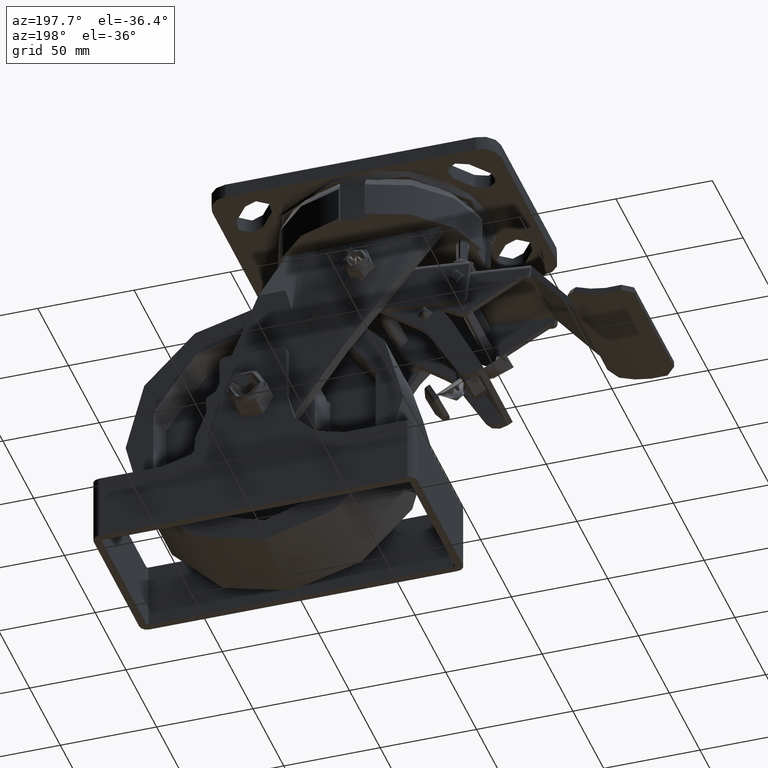
[diagram: clean part render]
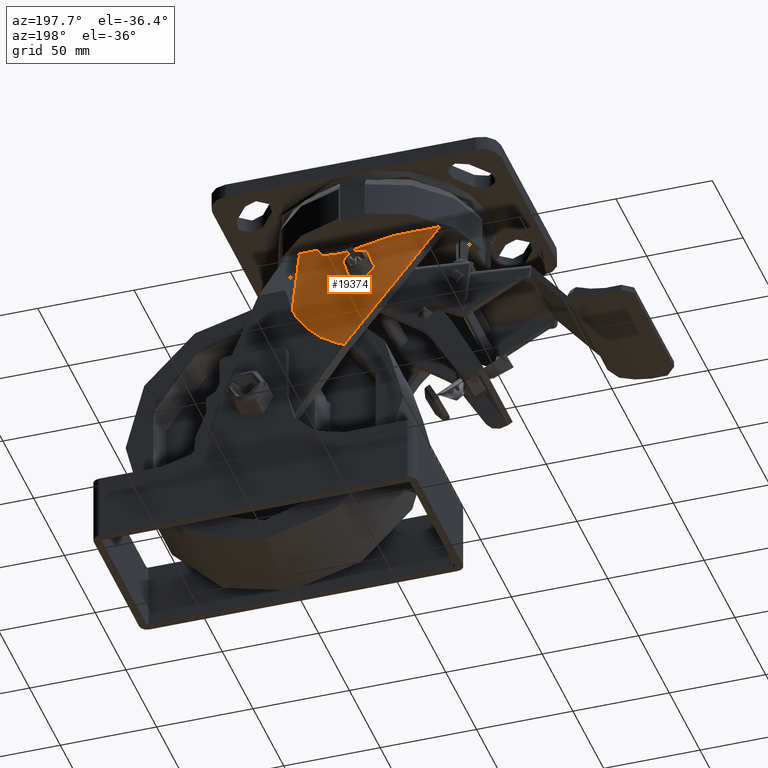
[diagram: same view with one face highlighted and labeled with its STEP entity id]
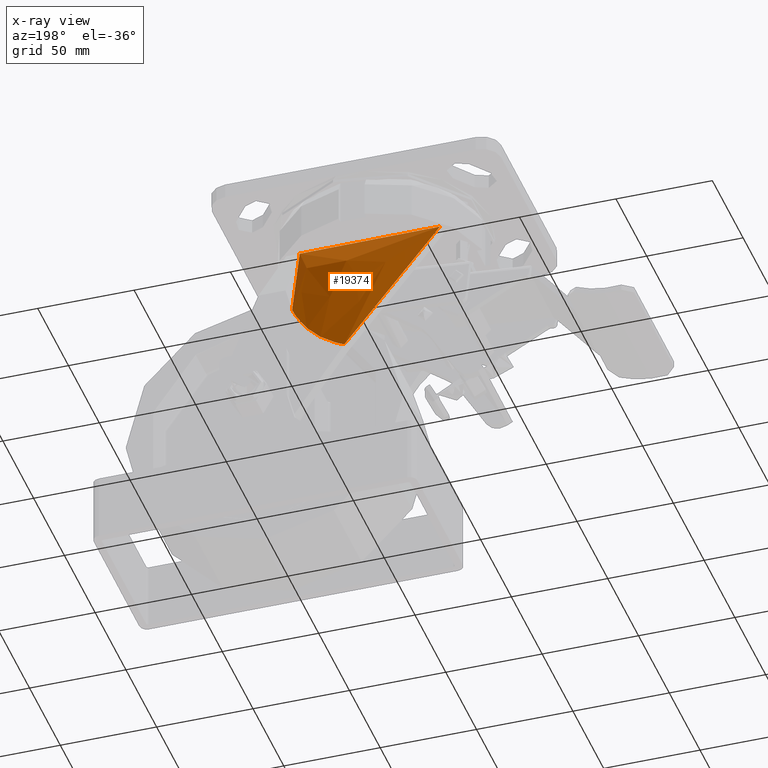
[diagram: x-ray of the same camera — body ghosted, the highlighted face saturated]
A machine part, auxiliary view. The second image highlights one B-rep face of the part: STEP entity #19374.
The next image is the same camera in x-ray: the body ghosted, the highlighted face saturated — about 0% of this face is hidden behind the body in this view.
In plain terms, the highlighted face is a freeform B-spline surface patch.
Its self-contained STEP definition (entity closure, byte-faithful):
#250=B_SPLINE_SURFACE_WITH_KNOTS('',3,3,((#71888,#71889,#71890,#71891,#71892,
#71893,#71894,#71895,#71896,#71897,#71898,#71899,#71900,#71901,#71902,#71903,
#71904,#71905,#71906,#71907,#71908,#71909),(#71910,#71911,#71912,#71913,
#71914,#71915,#71916,#71917,#71918,#71919,#71920,#71921,#71922,#71923,#71924,
#71925,#71926,#71927,#71928,#71929,#71930,#71931),(#71932,#71933,#71934,
#71935,#71936,#71937,#71938,#71939,#71940,#71941,#71942,#71943,#71944,#71945,
#71946,#71947,#71948,#71949,#71950,#71951,#71952,#71953),(#71954,#71955,
#71956,#71957,#71958,#71959,#71960,#71961,#71962,#71963,#71964,#71965,#71966,
#71967,#71968,#71969,#71970,#71971,#71972,#71973,#71974,#71975)),
 .UNSPECIFIED.,.F.,.F.,.F.,(4,4),(4,3,3,3,3,3,3,4),(0.,1.00000144330528),
(0.,0.129636568991837,0.2424674979637,0.340671412427488,0.509554797545953,
0.635179634033785,0.819817845282268,1.),.UNSPECIFIED.);
#824=B_SPLINE_CURVE_WITH_KNOTS('',3,(#71375,#71376,#71377,#71378),
 .UNSPECIFIED.,.F.,.F.,(4,4),(-1.30902538549853,-1.28621856521094),
 .UNSPECIFIED.);
#825=B_SPLINE_CURVE_WITH_KNOTS('',3,(#71380,#71381,#71382,#71383,#71384,
#71385,#71386,#71387,#71388,#71389,#71390,#71391,#71392,#71393,#71394,#71395,
#71396,#71397,#71398,#71399,#71400,#71401),.UNSPECIFIED.,.F.,.F.,(4,2,2,
2,2,2,2,2,2,2,4),(-1.25816083343912,-1.16818722275474,-1.08702808225504,
-0.972460856534677,-0.874482825054584,-0.768076427887392,-0.631192584790718,
-0.480579641983627,-0.321516949378837,-0.154243951292949,-1.00000341357915E-6),
 .UNSPECIFIED.);
#826=B_SPLINE_CURVE_WITH_KNOTS('',3,(#71402,#71403,#71404,#71405,#71406,
#71407,#71408,#71409,#71410,#71411,#71412,#71413,#71414,#71415,#71416,#71417,
#71418,#71419,#71420,#71421,#71422,#71423),.UNSPECIFIED.,.F.,.F.,(4,2,2,
2,2,2,2,2,2,2,4),(-1.28621856521094,-1.15467473941666,-1.01795669861519,
-0.903749095798788,-0.794809578487895,-0.670706475052889,-0.509225732616753,
-0.354964521386418,-0.181182880593424,-0.0929115591689827,-9.99999999695689E-7),
 .UNSPECIFIED.);
#827=B_SPLINE_CURVE_WITH_KNOTS('',3,(#71438,#71439,#71440,#71441,#71442,
#71443,#71444,#71445),.UNSPECIFIED.,.F.,.F.,(4,2,2,4),(-0.465779426838539,
-0.231529699049475,0.,0.00271974119233142),.UNSPECIFIED.);
#828=B_SPLINE_CURVE_WITH_KNOTS('',3,(#71449,#71450,#71451,#71452,#71453,
#71454,#71455,#71456),.UNSPECIFIED.,.F.,.F.,(4,2,2,4),(-0.506349159796468,
-0.50358787928808,-0.253174582982745,0.),.UNSPECIFIED.);
#836=B_SPLINE_CURVE_WITH_KNOTS('',3,(#71976,#71977,#71978,#71979,#71980,
#71981,#71982,#71983,#71984,#71985,#71986,#71987,#71988,#71989,#71990,#71991,
#71992,#71993,#71994,#71995,#71996,#71997),.UNSPECIFIED.,.F.,.F.,(4,3,3,
3,3,3,3,4),(0.,0.129636568991837,0.2424674979637,0.340671412427488,0.509554797545953,
0.635179634033785,0.819817845282268,1.),.UNSPECIFIED.);
#1323=FACE_BOUND('',#7205,.T.);
#2653=LINE('',#71501,#3921);
#2658=LINE('',#71887,#3926);
#3921=VECTOR('',#25054,999.999999999999);
#3926=VECTOR('',#25059,999.999999999999);
#5911=FACE_OUTER_BOUND('',#7204,.T.);
#7204=EDGE_LOOP('',(#16744,#16745,#16746,#16747,#16748,#16749));
#7205=EDGE_LOOP('',(#16750,#16751,#16752));
#8105=CIRCLE('',#21279,50.1174203491552);
#9492=VERTEX_POINT('',#71372);
#9493=VERTEX_POINT('',#71374);
#9494=VERTEX_POINT('',#71379);
#9499=VERTEX_POINT('',#71435);
#9500=VERTEX_POINT('',#71437);
#9501=VERTEX_POINT('',#71446);
#9502=VERTEX_POINT('',#71448);
#9509=VERTEX_POINT('',#71500);
#9513=VERTEX_POINT('',#71780);
#11989=EDGE_CURVE('',#9493,#9492,#824,.T.);
#11990=EDGE_CURVE('',#9494,#9493,#825,.T.);
#11991=EDGE_CURVE('',#9492,#9494,#826,.T.);
#11998=EDGE_CURVE('',#9499,#9500,#827,.T.);
#11999=EDGE_CURVE('',#9500,#9501,#8105,.T.);
#12000=EDGE_CURVE('',#9501,#9502,#828,.T.);
#12010=EDGE_CURVE('',#9509,#9499,#2653,.T.);
#12019=EDGE_CURVE('',#9513,#9502,#2658,.T.);
#12020=EDGE_CURVE('',#9513,#9509,#836,.T.);
#16744=ORIENTED_EDGE('',*,*,#12020,.F.);
#16745=ORIENTED_EDGE('',*,*,#12019,.T.);
#16746=ORIENTED_EDGE('',*,*,#12000,.F.);
#16747=ORIENTED_EDGE('',*,*,#11999,.F.);
#16748=ORIENTED_EDGE('',*,*,#11998,.F.);
#16749=ORIENTED_EDGE('',*,*,#12010,.F.);
#16750=ORIENTED_EDGE('',*,*,#11989,.T.);
#16751=ORIENTED_EDGE('',*,*,#11991,.T.);
#16752=ORIENTED_EDGE('',*,*,#11990,.T.);
#19374=ADVANCED_FACE('',(#5911,#1323),#250,.T.);
#21279=AXIS2_PLACEMENT_3D('',#71447,#25039,#25040);
#25039=DIRECTION('center_axis',(0.,-1.,0.));
#25040=DIRECTION('ref_axis',(0.923619010145107,0.,0.383311784450429));
#25054=DIRECTION('',(0.589113553421911,0.0676135997803201,-0.805216506474722));
#25059=DIRECTION('',(0.0518250218828474,0.154238043425194,-0.986673600066005));
#71372=CARTESIAN_POINT('',(2.17288799134469,40.7590428257837,-58.6625908997687));
#71374=CARTESIAN_POINT('',(2.16662042458714,40.7175984357472,-58.886424114284));
#71375=CARTESIAN_POINT('Ctrl Pts',(2.16662041759125,40.7175984334009,-58.8864241134496));
#71376=CARTESIAN_POINT('Ctrl Pts',(2.17080042853083,40.7316551232003,-58.8118424865458));
#71377=CARTESIAN_POINT('Ctrl Pts',(2.17288799134469,40.745470931471,-58.7372082310027));
#71378=CARTESIAN_POINT('Ctrl Pts',(2.17288799134469,40.7590428257837,-58.6625908997687));
#71379=CARTESIAN_POINT('',(-5.827112008147,39.3179797637501,-58.6625271318123));
#71380=CARTESIAN_POINT('Ctrl Pts',(-5.827112008147,39.3179797637501,-58.6625271318123));
#71381=CARTESIAN_POINT('Ctrl Pts',(-5.82711666409781,39.2502611425835,-58.9545829588625));
#71382=CARTESIAN_POINT('Ctrl Pts',(-5.79514239374063,39.1904512502908,-59.2474678657111));
#71383=CARTESIAN_POINT('Ctrl Pts',(-5.67241566334739,39.0950543794888,-59.7960414624906));
#71384=CARTESIAN_POINT('Ctrl Pts',(-5.58811465851346,39.0579717686532,-60.0508161218564));
#71385=CARTESIAN_POINT('Ctrl Pts',(-5.3232531560367,38.9899591730779,-60.6427653711859));
#71386=CARTESIAN_POINT('Ctrl Pts',(-5.11935138599391,38.968393905723,-60.9662368618576));
#71387=CARTESIAN_POINT('Ctrl Pts',(-4.66021773512601,38.9618781117804,-61.5051280503815));
#71388=CARTESIAN_POINT('Ctrl Pts',(-4.41922771807711,38.9720795579238,-61.7264072105998));
#71389=CARTESIAN_POINT('Ctrl Pts',(-3.86676531552225,39.0178600807178,-62.1216190933522));
#71390=CARTESIAN_POINT('Ctrl Pts',(-3.55413865519384,39.0552544749626,-62.2876042906475));
#71391=CARTESIAN_POINT('Ctrl Pts',(-2.80177856916773,39.1653634474804,-62.5682463232626));
#71392=CARTESIAN_POINT('Ctrl Pts',(-2.35691239901891,39.244199931601,-62.6525063480172));
#71393=CARTESIAN_POINT('Ctrl Pts',(-1.41756391078409,39.432245428803,-62.6718974415774));
#71394=CARTESIAN_POINT('Ctrl Pts',(-0.92954718687037,39.5422326901537,-62.5911210112824));
#71395=CARTESIAN_POINT('Ctrl Pts',(0.0159284861323042,39.778655242302,-62.2500327584562));
#71396=CARTESIAN_POINT('Ctrl Pts',(0.462788792205365,39.9038481376822,-61.9825779998451));
#71397=CARTESIAN_POINT('Ctrl Pts',(1.24978890351226,40.1586044442804,-61.2754065073883));
#71398=CARTESIAN_POINT('Ctrl Pts',(1.57608860752271,40.2858767953287,-60.8339242784628));
#71399=CARTESIAN_POINT('Ctrl Pts',(2.01486007832467,40.5182402916534,-59.8837892331429));
#71400=CARTESIAN_POINT('Ctrl Pts',(2.13834609964064,40.6225165490548,-59.3909071549625));
#71401=CARTESIAN_POINT('Ctrl Pts',(2.16662041759125,40.7175984334009,-58.8864241134496));
#71402=CARTESIAN_POINT('Ctrl Pts',(2.17288799134469,40.7590428257837,-58.6625908997687));
#71403=CARTESIAN_POINT('Ctrl Pts',(2.17288799134469,40.8373186210982,-58.2322360198969));
#71404=CARTESIAN_POINT('Ctrl Pts',(2.10342986322589,40.9075349234424,-57.802791856589));
#71405=CARTESIAN_POINT('Ctrl Pts',(1.8220763540381,41.0301031432412,-56.9634876222677));
#71406=CARTESIAN_POINT('Ctrl Pts',(1.60684376705619,41.0807079137446,-56.5616374514684));
#71407=CARTESIAN_POINT('Ctrl Pts',(1.09467945511361,41.1457660270786,-55.9045256117139));
#71408=CARTESIAN_POINT('Ctrl Pts',(0.819840025054099,41.1643841236407,-55.6396359494762));
#71409=CARTESIAN_POINT('Ctrl Pts',(0.217018730159904,41.175125701134,-55.2052642114806));
#71410=CARTESIAN_POINT('Ctrl Pts',(-0.104564928756824,41.1683323463148,
-55.0343627183222));
#71411=CARTESIAN_POINT('Ctrl Pts',(-0.83167374813257,41.1250461090176,-54.7665185956917));
#71412=CARTESIAN_POINT('Ctrl Pts',(-1.23691302657547,41.0848360780339,-54.6852522446009));
#71413=CARTESIAN_POINT('Ctrl Pts',(-2.17790651250988,40.9519678095988,-54.6425621904868));
#71414=CARTESIAN_POINT('Ctrl Pts',(-2.70414400959867,40.8486808780679,-54.7250038404075));
#71415=CARTESIAN_POINT('Ctrl Pts',(-3.66546937731724,40.6017877827466,-55.0750727900369));
#71416=CARTESIAN_POINT('Ctrl Pts',(-4.09513246667843,40.4624198242506,-55.3311461643127));
#71417=CARTESIAN_POINT('Ctrl Pts',(-4.88219113582978,40.1460426555524,-56.0217251154597));
#71418=CARTESIAN_POINT('Ctrl Pts',(-5.21823109407226,39.9687492171372,-56.4700712589509));
#71419=CARTESIAN_POINT('Ctrl Pts',(-5.57124271758145,39.7126071174034,-57.2270945453203));
#71420=CARTESIAN_POINT('Ctrl Pts',(-5.66334525306255,39.6286574563563,-57.4948488566238));
#71421=CARTESIAN_POINT('Ctrl Pts',(-5.79298130445952,39.465883731463,-58.0618822716823));
#71422=CARTESIAN_POINT('Ctrl Pts',(-5.82710719847826,39.3879341403026,-58.3608289733459));
#71423=CARTESIAN_POINT('Ctrl Pts',(-5.827112008147,39.31797976375,-58.6625271318126));
#71435=CARTESIAN_POINT('',(8.92119565217395,37.,-98.));
#71437=CARTESIAN_POINT('',(13.1581703613343,37.,-96.0046963569097));
#71438=CARTESIAN_POINT('Ctrl Pts',(8.92119565217394,37.,-98.));
#71439=CARTESIAN_POINT('Ctrl Pts',(9.64238732557642,37.,-97.7006977290135));
#71440=CARTESIAN_POINT('Ctrl Pts',(10.3565712368637,37.,-97.3845136933076));
#71441=CARTESIAN_POINT('Ctrl Pts',(11.7611962226896,37.,-96.7230082273338));
#71442=CARTESIAN_POINT('Ctrl Pts',(12.4518165115219,37.,-96.3780678493453));
#71443=CARTESIAN_POINT('Ctrl Pts',(13.1421246239994,37.,-96.0131397873338));
#71444=CARTESIAN_POINT('Ctrl Pts',(13.1501382622457,37.,-96.0089006351998));
#71445=CARTESIAN_POINT('Ctrl Pts',(13.1581507502755,37.,-96.004659310253));
#71446=CARTESIAN_POINT('',(33.8462152835971,37.,-75.4551360096678));
#71447=CARTESIAN_POINT('Origin',(-10.289402173913,37.,-51.710597826087));
#71448=CARTESIAN_POINT('',(36.0160404294022,37.,-70.8824993427597));
#71449=CARTESIAN_POINT('Ctrl Pts',(33.8462152787938,37.,-75.4551360070837));
#71450=CARTESIAN_POINT('Ctrl Pts',(33.8505760550436,37.,-75.447030318547));
#71451=CARTESIAN_POINT('Ctrl Pts',(33.8549345964925,37.,-75.4389234276936));
#71452=CARTESIAN_POINT('Ctrl Pts',(34.2543528855336,37.,-74.6955137220159));
#71453=CARTESIAN_POINT('Ctrl Pts',(34.6310301084649,37.,-73.9503350950788));
#71454=CARTESIAN_POINT('Ctrl Pts',(35.3506671504869,37.,-72.4337901196083));
#71455=CARTESIAN_POINT('Ctrl Pts',(35.6932093567163,37.,-71.6622256361491));
#71456=CARTESIAN_POINT('Ctrl Pts',(36.0160404294022,37.,-70.8824993427597));
#71500=CARTESIAN_POINT('',(-39.,31.5,-32.5));
#71501=CARTESIAN_POINT('',(-39.,31.5,-32.5));
#71780=CARTESIAN_POINT('',(34.,31.,-32.5000000000001));
#71887=CARTESIAN_POINT('',(34.,31.,-32.5000000000001));
#71888=CARTESIAN_POINT('Ctrl Pts',(34.,31.,-32.5000000000001));
#71889=CARTESIAN_POINT('Ctrl Pts',(31.4125696936924,33.2632326897456,-32.5000000000001));
#71890=CARTESIAN_POINT('Ctrl Pts',(28.6157544215003,35.2869861960004,-32.5));
#71891=CARTESIAN_POINT('Ctrl Pts',(25.6569420236026,37.0369710507861,-32.5));
#71892=CARTESIAN_POINT('Ctrl Pts',(23.081699913259,38.5600938732098,-32.5));
#71893=CARTESIAN_POINT('Ctrl Pts',(20.3838952042704,39.8759270652267,-32.5));
#71894=CARTESIAN_POINT('Ctrl Pts',(17.5981976277592,40.967560736059,-32.5));
#71895=CARTESIAN_POINT('Ctrl Pts',(15.1736283273158,41.9176787632087,-32.5));
#71896=CARTESIAN_POINT('Ctrl Pts',(12.682550600036,42.6980311164377,-32.5));
#71897=CARTESIAN_POINT('Ctrl Pts',(10.1492380724085,43.301013865389,-32.5));
#71898=CARTESIAN_POINT('Ctrl Pts',(5.79264600003744,44.3379762753599,-32.5));
#71899=CARTESIAN_POINT('Ctrl Pts',(1.31104219047609,44.8486525396587,-32.5));
#71900=CARTESIAN_POINT('Ctrl Pts',(-3.16715732459337,44.818409722818,-32.5));
#71901=CARTESIAN_POINT('Ctrl Pts',(-6.49829070663606,44.7959134368875,-32.5));
#71902=CARTESIAN_POINT('Ctrl Pts',(-9.82735038574787,44.4747517557287,-32.5));
#71903=CARTESIAN_POINT('Ctrl Pts',(-13.1013510854953,43.8600362850491,-32.5));
#71904=CARTESIAN_POINT('Ctrl Pts',(-17.9133424856689,42.9565528011596,-32.5));
#71905=CARTESIAN_POINT('Ctrl Pts',(-22.605530473268,41.4170953433551,-32.5));
#71906=CARTESIAN_POINT('Ctrl Pts',(-27.0174789258499,39.2943013135999,-32.5));
#71907=CARTESIAN_POINT('Ctrl Pts',(-31.3229494636897,37.2227387712804,-32.5));
#71908=CARTESIAN_POINT('Ctrl Pts',(-35.3609729109771,34.5961152698674,-32.5));
#71909=CARTESIAN_POINT('Ctrl Pts',(-39.,31.5,-32.5));
#71910=CARTESIAN_POINT('Ctrl Pts',(34.672014446388,33.0000028866106,-45.2941849134746));
#71911=CARTESIAN_POINT('Ctrl Pts',(32.7303164358773,34.5088235909291,-45.8176857454548));
#71912=CARTESIAN_POINT('Ctrl Pts',(30.6223733195356,35.8579916214676,-46.330149383915));
#71913=CARTESIAN_POINT('Ctrl Pts',(28.3810349453499,37.024647349404,-46.8289272457303));
#71914=CARTESIAN_POINT('Ctrl Pts',(26.4302559879435,38.040061831576,-47.2630452568507));
#71915=CARTESIAN_POINT('Ctrl Pts',(24.3785340635287,38.9172833265376,-47.6867968909185));
#71916=CARTESIAN_POINT('Ctrl Pts',(22.2499739542096,39.6450385819056,-48.098522459725));
#71917=CARTESIAN_POINT('Ctrl Pts',(20.3973530743556,40.2784501429019,-48.4568733384253));
#71918=CARTESIAN_POINT('Ctrl Pts',(18.4865761583961,40.7986846696256,-48.8061149922179));
#71919=CARTESIAN_POINT('Ctrl Pts',(16.5345677486951,41.2006728788305,-49.1452109285748));
#71920=CARTESIAN_POINT('Ctrl Pts',(13.1776568779826,41.89198065326,-49.728361507903));
#71921=CARTESIAN_POINT('Ctrl Pts',(9.69870182904323,42.2324312504385,-50.2814741317912));
#71922=CARTESIAN_POINT('Ctrl Pts',(6.18761727869663,42.2122693870947,-50.7997024617698));
#71923=CARTESIAN_POINT('Ctrl Pts',(3.57587769150842,42.197271873964,-51.1851894602172));
#71924=CARTESIAN_POINT('Ctrl Pts',(0.94650137195547,41.9831642410363,-51.5513847366265));
#71925=CARTESIAN_POINT('Ctrl Pts',(-1.66319808054324,41.5733542229905,-51.8965108291603));
#71926=CARTESIAN_POINT('Ctrl Pts',(-5.49882686444362,40.9710323350651,-52.4037629471504));
#71927=CARTESIAN_POINT('Ctrl Pts',(-9.29140123653148,39.9447281038311,-52.8654540901944));
#71928=CARTESIAN_POINT('Ctrl Pts',(-12.9270086564374,38.5295331052742,-53.2767514655593));
#71929=CARTESIAN_POINT('Ctrl Pts',(-16.4748743674243,37.1484924070269,-53.6781225946549));
#71930=CARTESIAN_POINT('Ctrl Pts',(-19.8728658344499,35.3974113364248,-54.0315014419237));
#71931=CARTESIAN_POINT('Ctrl Pts',(-23.0262450609705,33.333335979393,-54.3333648454986));
#71932=CARTESIAN_POINT('Ctrl Pts',(35.344028892776,35.0000057732211,-58.0883698269491));
#71933=CARTESIAN_POINT('Ctrl Pts',(34.0480631780622,35.7544144921126,-59.1353714909095));
#71934=CARTESIAN_POINT('Ctrl Pts',(32.6289922175708,36.4289970469347,-60.1602987678299));
#71935=CARTESIAN_POINT('Ctrl Pts',(31.1051278670972,37.0123236480217,-61.1578544914605));
#71936=CARTESIAN_POINT('Ctrl Pts',(29.7788120626281,37.5200297899421,-62.0260905137014));
#71937=CARTESIAN_POINT('Ctrl Pts',(28.3731729227871,37.9586395878485,-62.873593781837));
#71938=CARTESIAN_POINT('Ctrl Pts',(26.9017502806601,38.3225164277521,-63.69704491945));
#71939=CARTESIAN_POINT('Ctrl Pts',(25.6210778213954,38.6392215225951,-64.4137466768505));
#71940=CARTESIAN_POINT('Ctrl Pts',(24.2906017167563,38.8993382228136,-65.1122299844358));
#71941=CARTESIAN_POINT('Ctrl Pts',(22.9198974249818,39.100331892272,-65.7904218571496));
#71942=CARTESIAN_POINT('Ctrl Pts',(20.5626677559278,39.44598503116,-66.9567230158061));
#71943=CARTESIAN_POINT('Ctrl Pts',(18.0863614676104,39.6162099612185,-68.0629482635825));
#71944=CARTESIAN_POINT('Ctrl Pts',(15.5423918819867,39.6061290513713,-69.0994049235398));
#71945=CARTESIAN_POINT('Ctrl Pts',(13.6500460896529,39.5986303110405,-69.8703789204342));
#71946=CARTESIAN_POINT('Ctrl Pts',(11.7203531296588,39.4915767263438,-70.6027694732529));
#71947=CARTESIAN_POINT('Ctrl Pts',(9.77495492440884,39.2866721609319,-71.2930216583205));
#71948=CARTESIAN_POINT('Ctrl Pts',(6.91568875678161,38.9855118689704,-72.3075258943007));
#71949=CARTESIAN_POINT('Ctrl Pts',(4.02272800020505,38.472360864307,-73.2309081803888));
#71950=CARTESIAN_POINT('Ctrl Pts',(1.16346161297509,37.7647648969485,-74.0535029311186));
#71951=CARTESIAN_POINT('Ctrl Pts',(-1.62679927115876,37.0742460427735,-74.8562451893098));
#71952=CARTESIAN_POINT('Ctrl Pts',(-4.38475875792251,36.1987074029821,-75.5630028838475));
#71953=CARTESIAN_POINT('Ctrl Pts',(-7.05249012194091,35.1666719587861,-76.1667296909972));
#71954=CARTESIAN_POINT('Ctrl Pts',(36.016043339164,37.0000086598317,-70.8825547404236));
#71955=CARTESIAN_POINT('Ctrl Pts',(35.3658099202471,37.000005393296,-72.4530572363642));
#71956=CARTESIAN_POINT('Ctrl Pts',(34.6356111156061,37.0000024724019,-73.9904481517448));
#71957=CARTESIAN_POINT('Ctrl Pts',(33.8292207888446,36.9999999466395,-75.4867817371908));
#71958=CARTESIAN_POINT('Ctrl Pts',(33.1273681373126,36.9999977483083,-76.7891357705521));
#71959=CARTESIAN_POINT('Ctrl Pts',(32.3678117820453,36.9999958491593,-78.0603906727553));
#71960=CARTESIAN_POINT('Ctrl Pts',(31.5535266071105,36.9999942735986,-79.2955673791749));
#71961=CARTESIAN_POINT('Ctrl Pts',(30.8448025684352,36.9999929022883,-80.3706200152757));
#71962=CARTESIAN_POINT('Ctrl Pts',(30.0946272751165,36.9999917760016,-81.4183449766537));
#71963=CARTESIAN_POINT('Ctrl Pts',(29.3052271012685,36.9999909057134,-82.4356327857243));
#71964=CARTESIAN_POINT('Ctrl Pts',(27.9476786338729,36.9999894090601,-84.1850845237092));
#71965=CARTESIAN_POINT('Ctrl Pts',(26.4740211061775,36.9999886719984,-85.8444223953737));
#71966=CARTESIAN_POINT('Ctrl Pts',(24.8971664852766,36.999988715648,-87.3991073853097));
#71967=CARTESIAN_POINT('Ctrl Pts',(23.7242144877974,36.999988748117,-88.5555683806514));
#71968=CARTESIAN_POINT('Ctrl Pts',(22.4942048873621,36.9999892116513,-89.6541542098795));
#71969=CARTESIAN_POINT('Ctrl Pts',(21.213107929361,36.9999900988734,-90.6895324874807));
#71970=CARTESIAN_POINT('Ctrl Pts',(19.3302043780068,36.9999914028759,-92.211288841451));
#71971=CARTESIAN_POINT('Ctrl Pts',(17.3368572369415,36.999993624783,-93.596362270583));
#71972=CARTESIAN_POINT('Ctrl Pts',(15.2539318823876,36.9999966886228,-94.8302543966779));
#71973=CARTESIAN_POINT('Ctrl Pts',(13.2212758251067,36.99999967852,-96.0343677839647));
#71974=CARTESIAN_POINT('Ctrl Pts',(11.1033483186048,37.0000034695395,-97.0945043257712));
#71975=CARTESIAN_POINT('Ctrl Pts',(8.92126481708862,37.000007938179,-98.0000945364958));
#71976=CARTESIAN_POINT('Ctrl Pts',(34.,31.,-32.5000000000001));
#71977=CARTESIAN_POINT('Ctrl Pts',(31.4125696936924,33.2632326897456,-32.5000000000001));
#71978=CARTESIAN_POINT('Ctrl Pts',(28.6157544215003,35.2869861960004,-32.5));
#71979=CARTESIAN_POINT('Ctrl Pts',(25.6569420236026,37.0369710507861,-32.5));
#71980=CARTESIAN_POINT('Ctrl Pts',(23.081699913259,38.5600938732098,-32.5));
#71981=CARTESIAN_POINT('Ctrl Pts',(20.3838952042704,39.8759270652267,-32.5));
#71982=CARTESIAN_POINT('Ctrl Pts',(17.5981976277592,40.967560736059,-32.5));
#71983=CARTESIAN_POINT('Ctrl Pts',(15.1736283273158,41.9176787632087,-32.5));
#71984=CARTESIAN_POINT('Ctrl Pts',(12.682550600036,42.6980311164377,-32.5));
#71985=CARTESIAN_POINT('Ctrl Pts',(10.1492380724085,43.301013865389,-32.5));
#71986=CARTESIAN_POINT('Ctrl Pts',(5.79264600003744,44.3379762753599,-32.5));
#71987=CARTESIAN_POINT('Ctrl Pts',(1.31104219047609,44.8486525396587,-32.5));
#71988=CARTESIAN_POINT('Ctrl Pts',(-3.16715732459337,44.818409722818,-32.5));
#71989=CARTESIAN_POINT('Ctrl Pts',(-6.49829070663606,44.7959134368875,-32.5));
#71990=CARTESIAN_POINT('Ctrl Pts',(-9.82735038574787,44.4747517557287,-32.5));
#71991=CARTESIAN_POINT('Ctrl Pts',(-13.1013510854953,43.8600362850491,-32.5));
#71992=CARTESIAN_POINT('Ctrl Pts',(-17.9133424856689,42.9565528011596,-32.5));
#71993=CARTESIAN_POINT('Ctrl Pts',(-22.605530473268,41.4170953433551,-32.5));
#71994=CARTESIAN_POINT('Ctrl Pts',(-27.0174789258499,39.2943013135999,-32.5));
#71995=CARTESIAN_POINT('Ctrl Pts',(-31.3229494636897,37.2227387712804,-32.5));
#71996=CARTESIAN_POINT('Ctrl Pts',(-35.3609729109771,34.5961152698674,-32.5));
#71997=CARTESIAN_POINT('Ctrl Pts',(-39.,31.5,-32.5));